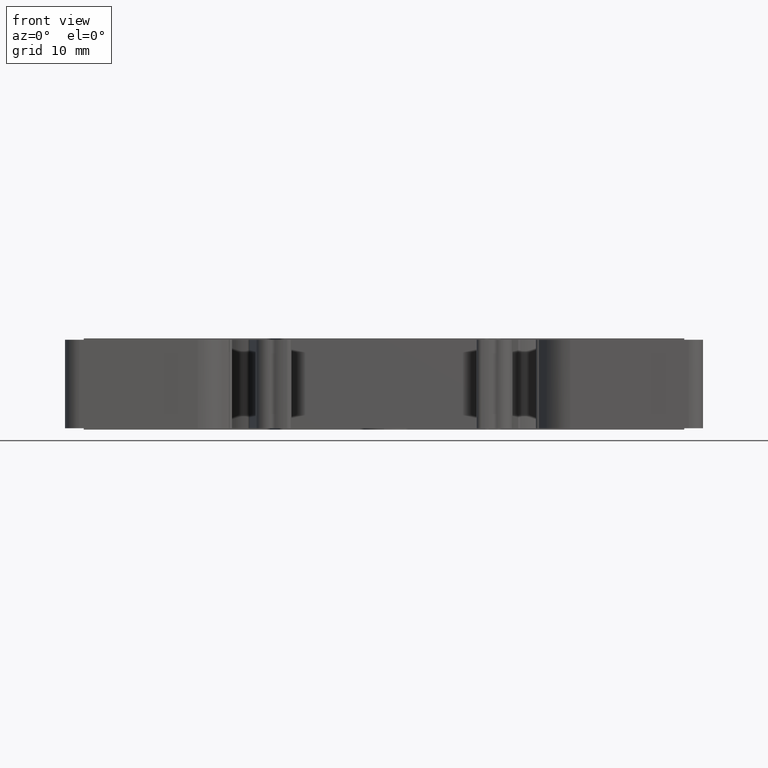
[diagram: clean part render]
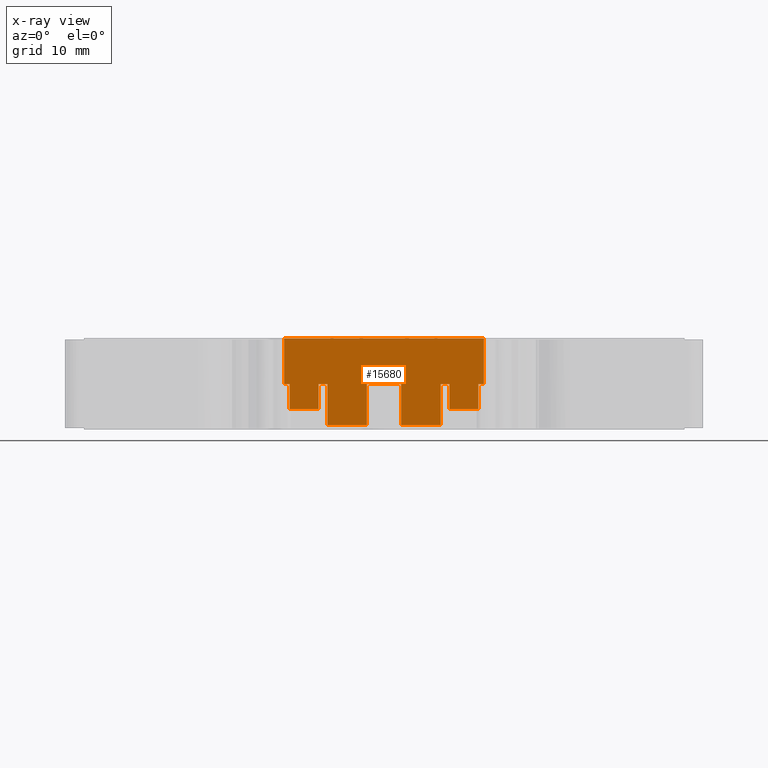
[diagram: x-ray — body ghosted, one internal face saturated and labeled with its STEP entity id]
A machine part, front view, then the same camera in x-ray: the body is ghosted and one INTERNAL B-rep face — a face not visible from any outside direction — is saturated and labeled: STEP entity #15680.
In plain terms, the highlighted planar face has unit normal (-0, 1, 0).
Its self-contained STEP definition (entity closure, byte-faithful):
#1243 = VERTEX_POINT ( 'NONE', #11294 ) ;
#3203 = EDGE_CURVE ( 'NONE', #8711, #1243, #15796, .T. ) ;
#4382 = VECTOR ( 'NONE', #10319, 1000.000000000000000 ) ;
#4383 = VECTOR ( 'NONE', #10361, 1000.000000000000000 ) ;
#4387 = VECTOR ( 'NONE', #10373, 1000.000000000000000 ) ;
#4388 = VECTOR ( 'NONE', #10330, 1000.000000000000000 ) ;
#4393 = VECTOR ( 'NONE', #10329, 1000.000000000000000 ) ;
#4398 = VECTOR ( 'NONE', #10394, 1000.000000000000000 ) ;
#4407 = VECTOR ( 'NONE', #10284, 1000.000000000000000 ) ;
#4419 = VECTOR ( 'NONE', #10259, 1000.000000000000000 ) ;
#4422 = VECTOR ( 'NONE', #10270, 1000.000000000000000 ) ;
#4423 = VECTOR ( 'NONE', #10307, 1000.000000000000000 ) ;
#4425 = VECTOR ( 'NONE', #10352, 1000.000000000000000 ) ;
#4430 = VECTOR ( 'NONE', #10304, 1000.000000000000000 ) ;
#4432 = VECTOR ( 'NONE', #10305, 1000.000000000000000 ) ;
#4433 = VECTOR ( 'NONE', #10326, 1000.000000000000000 ) ;
#4449 = VECTOR ( 'NONE', #10502, 1000.000000000000000 ) ;
#4450 = VECTOR ( 'NONE', #10460, 1000.000000000000000 ) ;
#4454 = VECTOR ( 'NONE', #10418, 1000.000000000000000 ) ;
#4476 = VECTOR ( 'NONE', #10444, 1000.000000000000000 ) ;
#4480 = VECTOR ( 'NONE', #10463, 1000.000000000000000 ) ;
#4834 = AXIS2_PLACEMENT_3D ( 'NONE', #5716, #5706, #5675 ) ;
#5675 = DIRECTION ( 'NONE',  ( -1.000000000000000000, -1.211228391768032000E-016, 0.0000000000000000000 ) ) ;
#5706 = DIRECTION ( 'NONE',  ( -1.211228391768032000E-016, 1.000000000000000000, 0.0000000000000000000 ) ) ;
#5715 = PLANE ( 'NONE',  #4834 ) ;
#5716 = CARTESIAN_POINT ( 'NONE',  ( 168.5817621240784900, 5.453695264897059600, -164.7295918704724900 ) ) ;
#5724 = FACE_OUTER_BOUND ( 'NONE', #9303, .T. ) ;
#8711 = VERTEX_POINT ( 'NONE', #19064 ) ;
#9303 = EDGE_LOOP ( 'NONE', ( #14431, #14416, #14329, #14406, #14324, #14379, #14357, #14320, #14349, #14401, #14370, #14351, #14408, #14366, #14336, #14414, #14353, #14384, #14447, #14377 ) ) ;
#10251 = LINE ( 'NONE', #10278, #4422 ) ;
#10255 = CARTESIAN_POINT ( 'NONE',  ( 181.1096746149031300, 5.453695264897061400, -164.7295918704724900 ) ) ;
#10257 = LINE ( 'NONE', #10338, #4393 ) ;
#10259 = DIRECTION ( 'NONE',  ( 0.0000000000000000000, 0.0000000000000000000, 1.000000000000000000 ) ) ;
#10263 = LINE ( 'NONE', #10287, #4419 ) ;
#10270 = DIRECTION ( 'NONE',  ( 0.0000000000000000000, 0.0000000000000000000, 1.000000000000000000 ) ) ;
#10273 = LINE ( 'NONE', #10255, #4407 ) ;
#10278 = CARTESIAN_POINT ( 'NONE',  ( 173.4213809497165900, 5.453695264897060500, -164.7295918704724900 ) ) ;
#10284 = DIRECTION ( 'NONE',  ( 0.0000000000000000000, 0.0000000000000000000, 1.000000000000000000 ) ) ;
#10287 = CARTESIAN_POINT ( 'NONE',  ( 169.5013610905894800, 5.453695264897059600, -164.7295918704724900 ) ) ;
#10303 = CARTESIAN_POINT ( 'NONE',  ( 168.5817621240784900, 5.453695264897059600, -25.35000000000001200 ) ) ;
#10304 = DIRECTION ( 'NONE',  ( -1.000000000000000000, -1.211228391768032000E-016, 0.0000000000000000000 ) ) ;
#10305 = DIRECTION ( 'NONE',  ( 1.000000000000000000, -0.0000000000000000000, 0.0000000000000000000 ) ) ;
#10306 = CARTESIAN_POINT ( 'NONE',  ( 168.5817621240784900, 5.453695264897059600, -21.05000000000001100 ) ) ;
#10307 = DIRECTION ( 'NONE',  ( -1.000000000000000000, -1.211228391768032000E-016, 0.0000000000000000000 ) ) ;
#10308 = CARTESIAN_POINT ( 'NONE',  ( 209.0733057929664900, 5.453695264897061400, -21.05000000000000400 ) ) ;
#10310 = LINE ( 'NONE', #10308, #4432 ) ;
#10312 = LINE ( 'NONE', #10306, #4433 ) ;
#10313 = LINE ( 'NONE', #10328, #4388 ) ;
#10319 = DIRECTION ( 'NONE',  ( 0.0000000000000000000, 0.0000000000000000000, 1.000000000000000000 ) ) ;
#10321 = LINE ( 'NONE', #10384, #4398 ) ;
#10324 = LINE ( 'NONE', #10303, #4423 ) ;
#10326 = DIRECTION ( 'NONE',  ( -1.000000000000000000, -1.211228391768032000E-016, 0.0000000000000000000 ) ) ;
#10328 = CARTESIAN_POINT ( 'NONE',  ( 168.5817621240784900, 5.453695264897059600, -21.04999999999998600 ) ) ;
#10329 = DIRECTION ( 'NONE',  ( -1.000000000000000000, -1.211228391768032000E-016, 0.0000000000000000000 ) ) ;
#10330 = DIRECTION ( 'NONE',  ( -1.000000000000000000, -1.211228391768032000E-016, 0.0000000000000000000 ) ) ;
#10333 = CARTESIAN_POINT ( 'NONE',  ( 168.5817621240784900, 5.453695264897059600, -23.65319060473591900 ) ) ;
#10338 = CARTESIAN_POINT ( 'NONE',  ( 168.5817621240784900, 5.453695264897059600, -21.05000000000001100 ) ) ;
#10340 = LINE ( 'NONE', #10333, #4430 ) ;
#10342 = CARTESIAN_POINT ( 'NONE',  ( 186.1451647315565200, 5.453695264897061400, -164.7295918704724900 ) ) ;
#10348 = LINE ( 'NONE', #10342, #4382 ) ;
#10352 = DIRECTION ( 'NONE',  ( -1.000000000000000000, -1.211228391768032000E-016, 0.0000000000000000000 ) ) ;
#10357 = CARTESIAN_POINT ( 'NONE',  ( 172.5013610905895400, 5.453695264897060500, -164.7295918704724900 ) ) ;
#10361 = DIRECTION ( 'NONE',  ( -0.0000000000000000000, -0.0000000000000000000, -1.000000000000000000 ) ) ;
#10373 = DIRECTION ( 'NONE',  ( -0.0000000000000000000, -0.0000000000000000000, -1.000000000000000000 ) ) ;
#10376 = LINE ( 'NONE', #10357, #4383 ) ;
#10380 = CARTESIAN_POINT ( 'NONE',  ( 185.2251702126868900, 5.453695264897061400, -164.7295918704724900 ) ) ;
#10381 = LINE ( 'NONE', #10390, #4425 ) ;
#10384 = CARTESIAN_POINT ( 'NONE',  ( 168.9281711336000200, 5.453695264897059600, -164.7295918704724900 ) ) ;
#10389 = LINE ( 'NONE', #10380, #4387 ) ;
#10390 = CARTESIAN_POINT ( 'NONE',  ( 168.5817621240784900, 5.453695264897059600, -21.04999999999998600 ) ) ;
#10394 = DIRECTION ( 'NONE',  ( 0.0000000000000000000, 0.0000000000000000000, 1.000000000000000000 ) ) ;
#10413 = LINE ( 'NONE', #10415, #4454 ) ;
#10415 = CARTESIAN_POINT ( 'NONE',  ( 168.5817621240784900, 5.453695264897059600, -23.65319060473589000 ) ) ;
#10418 = DIRECTION ( 'NONE',  ( -1.000000000000000000, -1.211228391768032000E-016, 0.0000000000000000000 ) ) ;
#10419 = LINE ( 'NONE', #10450, #4476 ) ;
#10444 = DIRECTION ( 'NONE',  ( -0.0000000000000000000, -0.0000000000000000000, -1.000000000000000000 ) ) ;
#10450 = CARTESIAN_POINT ( 'NONE',  ( 189.7183800288034700, 5.453695264897062200, -164.7295918704724900 ) ) ;
#10451 = LINE ( 'NONE', #10468, #4480 ) ;
#10458 = LINE ( 'NONE', #10496, #4449 ) ;
#10460 = DIRECTION ( 'NONE',  ( -0.0000000000000000000, -0.0000000000000000000, -1.000000000000000000 ) ) ;
#10463 = DIRECTION ( 'NONE',  ( -1.000000000000000000, -1.211228391768032000E-016, 0.0000000000000000000 ) ) ;
#10468 = CARTESIAN_POINT ( 'NONE',  ( 168.5817621240784900, 5.453695264897059600, -25.35000000000001200 ) ) ;
#10485 = CARTESIAN_POINT ( 'NONE',  ( 177.5368765474999300, 5.453695264897060500, -164.7295918704724900 ) ) ;
#10492 = LINE ( 'NONE', #10485, #4450 ) ;
#10496 = CARTESIAN_POINT ( 'NONE',  ( 189.1451647315565200, 5.453695264897062200, -164.7295918704724900 ) ) ;
#10502 = DIRECTION ( 'NONE',  ( -0.0000000000000000000, -0.0000000000000000000, -1.000000000000000000 ) ) ;
#11149 = VERTEX_POINT ( 'NONE', #19134 ) ;
#11152 = VERTEX_POINT ( 'NONE', #19132 ) ;
#11155 = VERTEX_POINT ( 'NONE', #19156 ) ;
#11159 = VERTEX_POINT ( 'NONE', #19120 ) ;
#11162 = VERTEX_POINT ( 'NONE', #19147 ) ;
#11165 = VERTEX_POINT ( 'NONE', #19116 ) ;
#11170 = VERTEX_POINT ( 'NONE', #19137 ) ;
#11171 = VERTEX_POINT ( 'NONE', #19144 ) ;
#11175 = VERTEX_POINT ( 'NONE', #19153 ) ;
#11176 = VERTEX_POINT ( 'NONE', #19158 ) ;
#11178 = VERTEX_POINT ( 'NONE', #19160 ) ;
#11188 = VERTEX_POINT ( 'NONE', #19161 ) ;
#11190 = VERTEX_POINT ( 'NONE', #19167 ) ;
#11199 = VERTEX_POINT ( 'NONE', #19182 ) ;
#11201 = VERTEX_POINT ( 'NONE', #19189 ) ;
#11206 = VERTEX_POINT ( 'NONE', #19169 ) ;
#11210 = VERTEX_POINT ( 'NONE', #19178 ) ;
#11226 = VERTEX_POINT ( 'NONE', #19165 ) ;
#11294 = CARTESIAN_POINT ( 'NONE',  ( 189.7183800288034700, 5.453695264897062200, -16.30000000000000100 ) ) ;
#12415 = EDGE_CURVE ( 'NONE', #11206, #11201, #10273, .T. ) ;
#12418 = EDGE_CURVE ( 'NONE', #11159, #11149, #10263, .T. ) ;
#12420 = EDGE_CURVE ( 'NONE', #11188, #11176, #10251, .T. ) ;
#12424 = EDGE_CURVE ( 'NONE', #11176, #11171, #10257, .T. ) ;
#12426 = EDGE_CURVE ( 'NONE', #11190, #11210, #10313, .T. ) ;
#12428 = EDGE_CURVE ( 'NONE', #11178, #11159, #10340, .T. ) ;
#12430 = EDGE_CURVE ( 'NONE', #11175, #11152, #10310, .T. ) ;
#12431 = EDGE_CURVE ( 'NONE', #11165, #11206, #10324, .T. ) ;
#12432 = EDGE_CURVE ( 'NONE', #11201, #11162, #10312, .T. ) ;
#12436 = EDGE_CURVE ( 'NONE', #11226, #11190, #10348, .T. ) ;
#12440 = EDGE_CURVE ( 'NONE', #11171, #11178, #10376, .T. ) ;
#12441 = EDGE_CURVE ( 'NONE', #11199, #8711, #10321, .T. ) ;
#12446 = EDGE_CURVE ( 'NONE', #11210, #11165, #10389, .T. ) ;
#12450 = EDGE_CURVE ( 'NONE', #11149, #11199, #10381, .T. ) ;
#12457 = EDGE_CURVE ( 'NONE', #11155, #11226, #10413, .T. ) ;
#12458 = EDGE_CURVE ( 'NONE', #1243, #11152, #10419, .T. ) ;
#12464 = EDGE_CURVE ( 'NONE', #11162, #11170, #10492, .T. ) ;
#12465 = EDGE_CURVE ( 'NONE', #11170, #11188, #10451, .T. ) ;
#12473 = EDGE_CURVE ( 'NONE', #11175, #11155, #10458, .T. ) ;
#13567 = VECTOR ( 'NONE', #15813, 1000.000000000000000 ) ;
#14320 = ORIENTED_EDGE ( 'NONE', *, *, #12432, .F. ) ;
#14324 = ORIENTED_EDGE ( 'NONE', *, *, #12420, .F. ) ;
#14329 = ORIENTED_EDGE ( 'NONE', *, *, #12440, .F. ) ;
#14336 = ORIENTED_EDGE ( 'NONE', *, *, #12473, .F. ) ;
#14349 = ORIENTED_EDGE ( 'NONE', *, *, #12415, .F. ) ;
#14351 = ORIENTED_EDGE ( 'NONE', *, *, #12426, .F. ) ;
#14353 = ORIENTED_EDGE ( 'NONE', *, *, #12458, .F. ) ;
#14357 = ORIENTED_EDGE ( 'NONE', *, *, #12464, .F. ) ;
#14366 = ORIENTED_EDGE ( 'NONE', *, *, #12457, .F. ) ;
#14370 = ORIENTED_EDGE ( 'NONE', *, *, #12446, .F. ) ;
#14377 = ORIENTED_EDGE ( 'NONE', *, *, #12450, .F. ) ;
#14379 = ORIENTED_EDGE ( 'NONE', *, *, #12465, .F. ) ;
#14384 = ORIENTED_EDGE ( 'NONE', *, *, #3203, .F. ) ;
#14401 = ORIENTED_EDGE ( 'NONE', *, *, #12431, .F. ) ;
#14406 = ORIENTED_EDGE ( 'NONE', *, *, #12424, .F. ) ;
#14408 = ORIENTED_EDGE ( 'NONE', *, *, #12436, .F. ) ;
#14414 = ORIENTED_EDGE ( 'NONE', *, *, #12430, .T. ) ;
#14416 = ORIENTED_EDGE ( 'NONE', *, *, #12428, .F. ) ;
#14431 = ORIENTED_EDGE ( 'NONE', *, *, #12418, .F. ) ;
#14447 = ORIENTED_EDGE ( 'NONE', *, *, #12441, .F. ) ;
#15680 = ADVANCED_FACE ( 'NONE', ( #5724 ), #5715, .F. ) ;
#15796 = LINE ( 'NONE', #15805, #13567 ) ;
#15805 = CARTESIAN_POINT ( 'NONE',  ( 209.0733057929664900, 5.453695264897057800, -16.29999999999999700 ) ) ;
#15813 = DIRECTION ( 'NONE',  ( 1.000000000000000000, 0.0000000000000000000, -0.0000000000000000000 ) ) ;
#19064 = CARTESIAN_POINT ( 'NONE',  ( 168.9281711336000200, 5.453695264897061400, -16.30000000000000100 ) ) ;
#19116 = CARTESIAN_POINT ( 'NONE',  ( 185.2251702126868900, 5.453695264897066700, -25.35000000000000900 ) ) ;
#19120 = CARTESIAN_POINT ( 'NONE',  ( 169.5013610905894800, 5.453695264897061400, -23.65319060473590800 ) ) ;
#19132 = CARTESIAN_POINT ( 'NONE',  ( 189.7183800288034700, 5.453695264897062200, -21.05000000000000800 ) ) ;
#19134 = CARTESIAN_POINT ( 'NONE',  ( 169.5013610905894800, 5.453695264897058700, -21.04999999999999000 ) ) ;
#19137 = CARTESIAN_POINT ( 'NONE',  ( 177.5368765474999300, 5.453695264897068500, -25.35000000000000900 ) ) ;
#19144 = CARTESIAN_POINT ( 'NONE',  ( 172.5013610905895400, 5.453695264897060500, -21.05000000000001100 ) ) ;
#19147 = CARTESIAN_POINT ( 'NONE',  ( 177.5368765474999300, 5.453695264897067600, -21.05000000000001100 ) ) ;
#19153 = CARTESIAN_POINT ( 'NONE',  ( 189.1451647315565200, 5.453695264897061400, -21.05000000000000100 ) ) ;
#19156 = CARTESIAN_POINT ( 'NONE',  ( 189.1451647315565200, 5.453695264897060500, -23.65319060473589400 ) ) ;
#19158 = CARTESIAN_POINT ( 'NONE',  ( 173.4213809497165900, 5.453695264897067600, -21.05000000000001100 ) ) ;
#19160 = CARTESIAN_POINT ( 'NONE',  ( 172.5013610905895400, 5.453695264897061400, -23.65319060473591500 ) ) ;
#19161 = CARTESIAN_POINT ( 'NONE',  ( 173.4213809497165900, 5.453695264897066700, -25.35000000000000900 ) ) ;
#19165 = CARTESIAN_POINT ( 'NONE',  ( 186.1451647315565200, 5.453695264897061400, -23.65319060473589000 ) ) ;
#19167 = CARTESIAN_POINT ( 'NONE',  ( 186.1451647315565200, 5.453695264897061400, -21.04999999999999000 ) ) ;
#19169 = CARTESIAN_POINT ( 'NONE',  ( 181.1096746149031300, 5.453695264897062200, -25.35000000000000900 ) ) ;
#19178 = CARTESIAN_POINT ( 'NONE',  ( 185.2251702126868900, 5.453695264897064900, -21.04999999999999700 ) ) ;
#19182 = CARTESIAN_POINT ( 'NONE',  ( 168.9281711336000200, 5.453695264897061400, -21.04999999999999700 ) ) ;
#19189 = CARTESIAN_POINT ( 'NONE',  ( 181.1096746149031300, 5.453695264897060500, -21.05000000000001100 ) ) ;